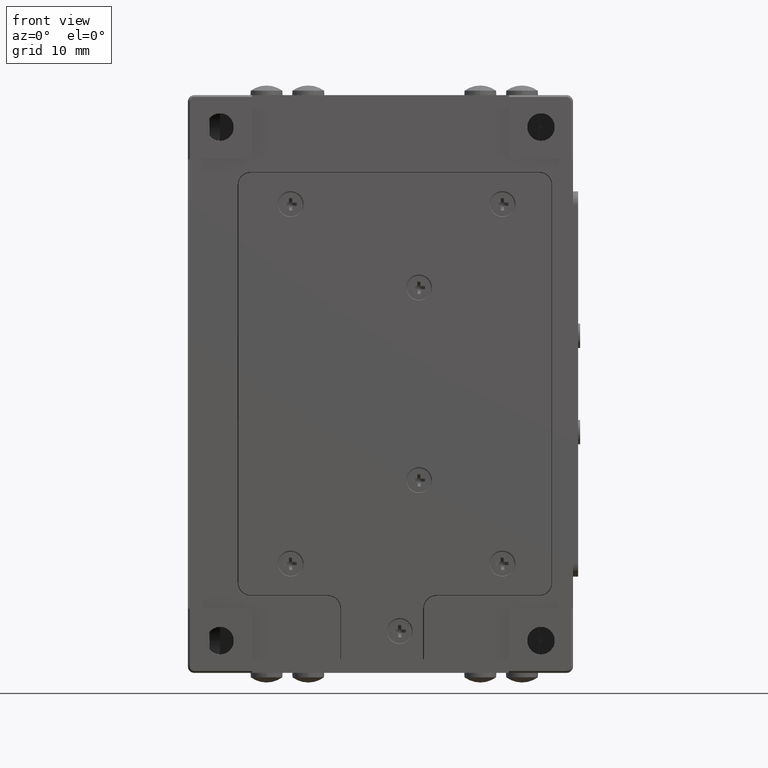
[diagram: clean part render]
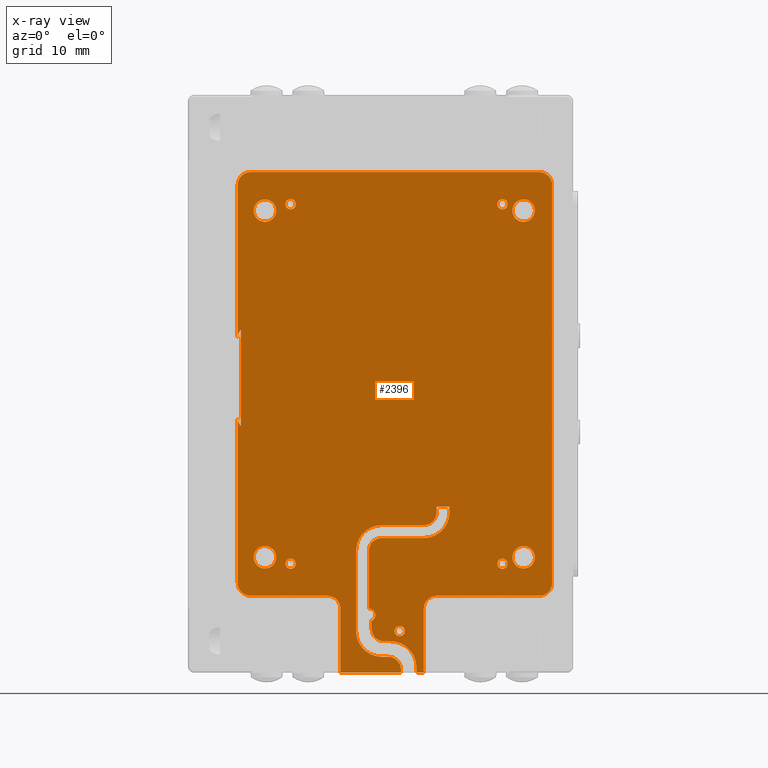
[diagram: x-ray — body ghosted, one internal face saturated and labeled with its STEP entity id]
A machine part, front view, then the same camera in x-ray: the body is ghosted and one INTERNAL B-rep face — a face not visible from any outside direction — is saturated and labeled: STEP entity #2396.
In plain terms, the highlighted planar face has unit normal (0, -1, 0).
Its self-contained STEP definition (entity closure, byte-faithful):
#40 = CARTESIAN_POINT ( 'NONE',  ( 30.59999999999999787, 3.250000000000000000, -85.09999999999999432 ) ) ;
#89 = FACE_BOUND ( 'NONE', #26104, .T. ) ;
#176 = VERTEX_POINT ( 'NONE', #14839 ) ;
#201 = ORIENTED_EDGE ( 'NONE', *, *, #27828, .F. ) ;
#214 = DIRECTION ( 'NONE',  ( 1.182766006347821876E-16, 0.000000000000000000, -1.000000000000000000 ) ) ;
#321 = DIRECTION ( 'NONE',  ( -2.312964634635740689E-15, 0.000000000000000000, -1.000000000000000000 ) ) ;
#330 = CARTESIAN_POINT ( 'NONE',  ( 23.75000000000000000, 3.250000000000000000, -90.00000000000000000 ) ) ;
#337 = VERTEX_POINT ( 'NONE', #40 ) ;
#500 = DIRECTION ( 'NONE',  ( 0.000000000000000000, -1.000000000000000000, 0.000000000000000000 ) ) ;
#508 = ORIENTED_EDGE ( 'NONE', *, *, #6163, .F. ) ;
#528 = CARTESIAN_POINT ( 'NONE',  ( 33.20000000000000284, 3.250000000000000000, -90.00000000000000000 ) ) ;
#571 = CARTESIAN_POINT ( 'NONE',  ( 26.20000000000000284, 3.250000000000000000, -87.50000000000000000 ) ) ;
#682 = EDGE_LOOP ( 'NONE', ( #201, #20835 ) ) ;
#776 = CARTESIAN_POINT ( 'NONE',  ( 30.20000000000000284, 3.250000000000000000, -71.00000000000000000 ) ) ;
#825 = EDGE_CURVE ( 'NONE', #11387, #21445, #11727, .T. ) ;
#911 = CIRCLE ( 'NONE', #11723, 2.000000000000001776 ) ;
#985 = ORIENTED_EDGE ( 'NONE', *, *, #4991, .T. ) ;
#1017 = VERTEX_POINT ( 'NONE', #18372 ) ;
#1246 = FACE_OUTER_BOUND ( 'NONE', #19848, .T. ) ;
#1423 = CARTESIAN_POINT ( 'NONE',  ( 30.20000000000000284, 3.250000000000000000, -71.00000000000000000 ) ) ;
#1487 = DIRECTION ( 'NONE',  ( 0.000000000000000000, -1.000000000000000000, 0.000000000000000000 ) ) ;
#1807 = CARTESIAN_POINT ( 'NONE',  ( 16.00000000000000000, 3.250000000000000000, -73.80000000000001137 ) ) ;
#1831 = CARTESIAN_POINT ( 'NONE',  ( 26.20000000000000284, 3.250000000000000000, -83.50000000000000000 ) ) ;
#1834 = DIRECTION ( 'NONE',  ( -1.000000000000000000, 0.000000000000000000, 0.000000000000000000 ) ) ;
#1861 = CARTESIAN_POINT ( 'NONE',  ( 28.60000000000000142, 3.250000000000000000, -85.09999999999999432 ) ) ;
#1875 = DIRECTION ( 'NONE',  ( 0.000000000000000000, 0.000000000000000000, -1.000000000000000000 ) ) ;
#1928 = EDGE_CURVE ( 'NONE', #26527, #22043, #14927, .T. ) ;
#1947 = AXIS2_PLACEMENT_3D ( 'NONE', #21725, #19592, #321 ) ;
#1975 = CARTESIAN_POINT ( 'NONE',  ( 30.20000000000000284, 3.250000000000000000, -83.50000000000000000 ) ) ;
#2014 = CARTESIAN_POINT ( 'NONE',  ( 56.75000000000000000, 3.250000000000000000, -12.00000000000000000 ) ) ;
#2039 = CARTESIAN_POINT ( 'NONE',  ( 12.00000000000000000, 3.250000000000000000, -72.00000000000000000 ) ) ;
#2042 = DIRECTION ( 'NONE',  ( 0.000000000000000000, 1.000000000000000000, 0.000000000000000000 ) ) ;
#2057 = DIRECTION ( 'NONE',  ( 0.000000000000000000, 0.000000000000000000, -1.000000000000000000 ) ) ;
#2064 = EDGE_CURVE ( 'NONE', #16435, #19177, #5652, .T. ) ;
#2192 = CARTESIAN_POINT ( 'NONE',  ( 8.248823012634890262, 3.250000000000000000, -36.56301985694889822 ) ) ;
#2244 = CARTESIAN_POINT ( 'NONE',  ( 52.29999999999999716, 3.250000000000000000, -19.75000000000000000 ) ) ;
#2279 = CARTESIAN_POINT ( 'NONE',  ( 35.60000000000000142, 3.250000000000000000, -90.00000000000000000 ) ) ;
#2362 = CIRCLE ( 'NONE', #5054, 2.000000000000001776 ) ;
#2376 = ORIENTED_EDGE ( 'NONE', *, *, #7323, .T. ) ;
#2396 = ADVANCED_FACE ( 'NONE', ( #1246, #27427, #23086, #6042, #12407, #20538, #5897, #12934, #18705, #89 ), #8685, .T. ) ;
#2507 = EDGE_CURVE ( 'NONE', #24989, #26527, #18838, .T. ) ;
#2606 = ORIENTED_EDGE ( 'NONE', *, *, #18193, .F. ) ;
#2625 = CARTESIAN_POINT ( 'NONE',  ( 28.60000000000000142, 3.250000000000000000, -83.09999999999999432 ) ) ;
#2678 = CARTESIAN_POINT ( 'NONE',  ( 7.750000000000000000, 3.250000000000000000, -14.00000000000000000 ) ) ;
#2717 = CARTESIAN_POINT ( 'NONE',  ( 28.60000000000000142, 3.250000000000000000, -81.91651513899120118 ) ) ;
#2725 = DIRECTION ( 'NONE',  ( 0.000000000000000000, 0.000000000000000000, -1.000000000000000000 ) ) ;
#2771 = ORIENTED_EDGE ( 'NONE', *, *, #20947, .T. ) ;
#2781 = DIRECTION ( 'NONE',  ( 0.000000000000000000, -1.000000000000000000, 0.000000000000000000 ) ) ;
#2808 = VERTEX_POINT ( 'NONE', #11628 ) ;
#2837 = CIRCLE ( 'NONE', #22642, 0.7999999999999951594 ) ;
#2879 = EDGE_CURVE ( 'NONE', #7206, #22760, #19055, .T. ) ;
#2890 = DIRECTION ( 'NONE',  ( 0.000000000000000000, 0.000000000000000000, -1.000000000000000000 ) ) ;
#2911 = CARTESIAN_POINT ( 'NONE',  ( 49.00000000000000000, 3.250000000000000000, -73.00000000000000000 ) ) ;
#3031 = DIRECTION ( 'NONE',  ( 0.000000000000000000, 0.000000000000000000, -1.000000000000000000 ) ) ;
#3079 = CIRCLE ( 'NONE', #13910, 0.7999999999999951594 ) ;
#3211 = CIRCLE ( 'NONE', #20754, 1.750000000000001554 ) ;
#3285 = VERTEX_POINT ( 'NONE', #27198 ) ;
#3307 = DIRECTION ( 'NONE',  ( 0.000000000000000000, -1.000000000000000000, 0.000000000000000000 ) ) ;
#3427 = DIRECTION ( 'NONE',  ( 0.000000000000000000, -1.000000000000000000, 0.000000000000000000 ) ) ;
#3467 = VERTEX_POINT ( 'NONE', #8765 ) ;
#3521 = DIRECTION ( 'NONE',  ( 1.000000000000000000, 0.000000000000000000, 0.000000000000000000 ) ) ;
#3670 = CARTESIAN_POINT ( 'NONE',  ( 30.59999999999999787, 3.250000000000000000, -83.09999999999999432 ) ) ;
#3750 = VERTEX_POINT ( 'NONE', #16741 ) ;
#3811 = CARTESIAN_POINT ( 'NONE',  ( 23.75000000000000000, 3.250000000000000000, -78.00000000000000000 ) ) ;
#3819 = DIRECTION ( 'NONE',  ( 0.000000000000000000, 0.000000000000000000, 1.000000000000000000 ) ) ;
#3878 = CARTESIAN_POINT ( 'NONE',  ( 31.19999999999999929, 3.250000000000000000, -89.50000000000000000 ) ) ;
#4021 = VERTEX_POINT ( 'NONE', #2625 ) ;
#4052 = CARTESIAN_POINT ( 'NONE',  ( 54.75000000000000000, 3.250000000000000000, -14.00000000000000000 ) ) ;
#4101 = CIRCLE ( 'NONE', #22980, 0.2999999999999947153 ) ;
#4116 = VECTOR ( 'NONE', #6270, 1000.000000000000000 ) ;
#4206 = EDGE_LOOP ( 'NONE', ( #15213, #25894 ) ) ;
#4210 = EDGE_CURVE ( 'NONE', #15491, #12028, #11200, .T. ) ;
#4211 = ORIENTED_EDGE ( 'NONE', *, *, #8057, .T. ) ;
#4322 = EDGE_CURVE ( 'NONE', #1017, #13098, #10428, .T. ) ;
#4366 = DIRECTION ( 'NONE',  ( 0.000000000000000000, 0.000000000000000000, -1.000000000000000000 ) ) ;
#4492 = DIRECTION ( 'NONE',  ( 0.000000000000000000, -1.000000000000000000, 0.000000000000000000 ) ) ;
#4502 = EDGE_CURVE ( 'NONE', #13005, #6676, #27806, .T. ) ;
#4510 = AXIS2_PLACEMENT_3D ( 'NONE', #21358, #19232, #2057 ) ;
#4536 = CARTESIAN_POINT ( 'NONE',  ( 52.29999999999999716, 3.250000000000000000, -73.75000000000000000 ) ) ;
#4556 = EDGE_CURVE ( 'NONE', #21292, #22760, #17166, .T. ) ;
#4580 = DIRECTION ( 'NONE',  ( -2.102695122396129669E-16, 0.000000000000000000, 1.000000000000000000 ) ) ;
#4778 = DIRECTION ( 'NONE',  ( 0.000000000000000000, 0.000000000000000000, -1.000000000000000000 ) ) ;
#4801 = VECTOR ( 'NONE', #9171, 1000.000000000000000 ) ;
#4847 = DIRECTION ( 'NONE',  ( 0.000000000000000000, -1.000000000000000000, 0.000000000000000000 ) ) ;
#4868 = CARTESIAN_POINT ( 'NONE',  ( 38.75000000000000000, 3.250000000000000000, -78.00000000000000000 ) ) ;
#4924 = VERTEX_POINT ( 'NONE', #1831 ) ;
#4991 = EDGE_CURVE ( 'NONE', #6468, #4924, #19365, .T. ) ;
#5014 = AXIS2_PLACEMENT_3D ( 'NONE', #10095, #2042, #10370 ) ;
#5054 = AXIS2_PLACEMENT_3D ( 'NONE', #3670, #5933, #21280 ) ;
#5068 = VECTOR ( 'NONE', #20670, 1000.000000000000000 ) ;
#5075 = AXIS2_PLACEMENT_3D ( 'NONE', #17749, #15376, #23964 ) ;
#5102 = CIRCLE ( 'NONE', #10066, 0.7999999999999951594 ) ;
#5140 = EDGE_CURVE ( 'NONE', #9000, #10043, #4101, .T. ) ;
#5218 = CARTESIAN_POINT ( 'NONE',  ( 36.75000000000000000, 3.250000000000000000, -65.00000000000000000 ) ) ;
#5313 = AXIS2_PLACEMENT_3D ( 'NONE', #5616, #27152, #7868 ) ;
#5352 = DIRECTION ( 'NONE',  ( -1.000000000000000000, 0.000000000000000000, 0.000000000000000000 ) ) ;
#5404 = ORIENTED_EDGE ( 'NONE', *, *, #19401, .F. ) ;
#5471 = ORIENTED_EDGE ( 'NONE', *, *, #5648, .F. ) ;
#5492 = ORIENTED_EDGE ( 'NONE', *, *, #14829, .T. ) ;
#5616 = CARTESIAN_POINT ( 'NONE',  ( 0.000000000000000000, 3.250000000000000000, 0.000000000000000000 ) ) ;
#5648 = EDGE_CURVE ( 'NONE', #21146, #10043, #17414, .T. ) ;
#5652 = LINE ( 'NONE', #14260, #11328 ) ;
#5810 = DIRECTION ( 'NONE',  ( 0.000000000000000000, -1.000000000000000000, 0.000000000000000000 ) ) ;
#5811 = ORIENTED_EDGE ( 'NONE', *, *, #25955, .T. ) ;
#5813 = CARTESIAN_POINT ( 'NONE',  ( 33.00000000000000000, 3.250000000000000000, -82.69999999999998863 ) ) ;
#5883 = CARTESIAN_POINT ( 'NONE',  ( 23.75000000000000000, 3.250000000000000000, -80.00000000000000000 ) ) ;
#5897 = FACE_BOUND ( 'NONE', #17211, .T. ) ;
#5933 = DIRECTION ( 'NONE',  ( 0.000000000000000000, -1.000000000000000000, 0.000000000000000000 ) ) ;
#5974 = EDGE_CURVE ( 'NONE', #16652, #11817, #9097, .T. ) ;
#6042 = FACE_BOUND ( 'NONE', #22532, .T. ) ;
#6160 = VECTOR ( 'NONE', #10896, 1000.000000000000000 ) ;
#6163 = EDGE_CURVE ( 'NONE', #7795, #13707, #3211, .T. ) ;
#6168 = EDGE_CURVE ( 'NONE', #13098, #11860, #24426, .T. ) ;
#6270 = DIRECTION ( 'NONE',  ( 0.000000000000000000, 0.000000000000000000, -1.000000000000000000 ) ) ;
#6293 = EDGE_CURVE ( 'NONE', #13892, #176, #8077, .T. ) ;
#6357 = EDGE_CURVE ( 'NONE', #11860, #10475, #7745, .T. ) ;
#6386 = DIRECTION ( 'NONE',  ( -1.000000000000000000, 0.000000000000000000, -7.080503983578799386E-17 ) ) ;
#6387 = DIRECTION ( 'NONE',  ( 1.000000000000000000, 0.000000000000000000, 0.000000000000000000 ) ) ;
#6456 = CARTESIAN_POINT ( 'NONE',  ( 40.75000000000000000, 3.250000000000000000, -64.12938333263569746 ) ) ;
#6464 = CIRCLE ( 'NONE', #19031, 0.7999999999999812816 ) ;
#6468 = VERTEX_POINT ( 'NONE', #17621 ) ;
#6496 = LINE ( 'NONE', #21001, #22331 ) ;
#6644 = CIRCLE ( 'NONE', #13853, 0.7999999999999882760 ) ;
#6664 = ORIENTED_EDGE ( 'NONE', *, *, #6168, .T. ) ;
#6676 = VERTEX_POINT ( 'NONE', #24662 ) ;
#6691 = VERTEX_POINT ( 'NONE', #18314 ) ;
#6702 = EDGE_CURVE ( 'NONE', #4021, #337, #2362, .T. ) ;
#6734 = EDGE_CURVE ( 'NONE', #21292, #19177, #18743, .T. ) ;
#6790 = CARTESIAN_POINT ( 'NONE',  ( 28.19999999999999929, 3.250000000000000000, -80.00000000000000000 ) ) ;
#6824 = CARTESIAN_POINT ( 'NONE',  ( 54.75000000000000000, 3.250000000000000000, -78.00000000000000000 ) ) ;
#6828 = VERTEX_POINT ( 'NONE', #16773 ) ;
#6911 = CIRCLE ( 'NONE', #10548, 0.9999999999999870104 ) ;
#6944 = EDGE_CURVE ( 'NONE', #10142, #2808, #25746, .T. ) ;
#7010 = DIRECTION ( 'NONE',  ( 0.000000000000000000, 0.000000000000000000, -1.000000000000000000 ) ) ;
#7073 = DIRECTION ( 'NONE',  ( 0.000000000000000000, 0.000000000000000000, -1.000000000000000000 ) ) ;
#7097 = CARTESIAN_POINT ( 'NONE',  ( 16.00000000000000000, 3.250000000000000000, -16.19999999999999929 ) ) ;
#7198 = AXIS2_PLACEMENT_3D ( 'NONE', #15591, #23774, #9123 ) ;
#7206 = VERTEX_POINT ( 'NONE', #12377 ) ;
#7323 = EDGE_CURVE ( 'NONE', #10475, #8807, #10944, .T. ) ;
#7330 = CARTESIAN_POINT ( 'NONE',  ( 31.19999999999999929, 3.250000000000000000, -87.50000000000000000 ) ) ;
#7410 = CARTESIAN_POINT ( 'NONE',  ( 28.19999999999999929, 3.250000000000000000, -71.00000000000000000 ) ) ;
#7482 = DIRECTION ( 'NONE',  ( 0.000000000000000000, 1.000000000000000000, 0.000000000000000000 ) ) ;
#7579 = DIRECTION ( 'NONE',  ( 0.000000000000000000, 0.000000000000000000, -1.000000000000000000 ) ) ;
#7660 = CARTESIAN_POINT ( 'NONE',  ( 28.19999999999999929, 3.250000000000000000, -81.00000000000000000 ) ) ;
#7665 = ORIENTED_EDGE ( 'NONE', *, *, #16691, .T. ) ;
#7745 = CIRCLE ( 'NONE', #15399, 2.000000000000001776 ) ;
#7795 = VERTEX_POINT ( 'NONE', #13028 ) ;
#7868 = DIRECTION ( 'NONE',  ( 0.000000000000000000, 0.000000000000000000, -1.000000000000000000 ) ) ;
#7887 = CARTESIAN_POINT ( 'NONE',  ( 9.750000000000000000, 3.250000000000000000, -14.00000000000000000 ) ) ;
#7892 = AXIS2_PLACEMENT_3D ( 'NONE', #7887, #20417, #9741 ) ;
#7907 = DIRECTION ( 'NONE',  ( 0.000000000000000000, 0.000000000000000000, -1.000000000000000000 ) ) ;
#7997 = EDGE_LOOP ( 'NONE', ( #14520, #24666 ) ) ;
#8057 = EDGE_CURVE ( 'NONE', #6828, #27137, #25366, .T. ) ;
#8077 = LINE ( 'NONE', #2014, #10005 ) ;
#8091 = AXIS2_PLACEMENT_3D ( 'NONE', #1423, #27611, #7907 ) ;
#8250 = CARTESIAN_POINT ( 'NONE',  ( 23.75000000000000000, 3.250000000000000000, -90.00000000000000000 ) ) ;
#8351 = ORIENTED_EDGE ( 'NONE', *, *, #5974, .F. ) ;
#8420 = CIRCLE ( 'NONE', #11578, 0.7999999999999951594 ) ;
#8455 = ORIENTED_EDGE ( 'NONE', *, *, #12386, .F. ) ;
#8510 = ORIENTED_EDGE ( 'NONE', *, *, #9293, .T. ) ;
#8568 = CARTESIAN_POINT ( 'NONE',  ( 49.00000000000000000, 3.250000000000000000, -17.80000000000000071 ) ) ;
#8607 = LINE ( 'NONE', #3811, #15963 ) ;
#8685 = PLANE ( 'NONE',  #5313 ) ;
#8698 = EDGE_CURVE ( 'NONE', #20540, #13005, #12380, .T. ) ;
#8700 = CIRCLE ( 'NONE', #1947, 1.500000000000001332 ) ;
#8765 = CARTESIAN_POINT ( 'NONE',  ( 49.00000000000000000, 3.250000000000000000, -16.19999999999999929 ) ) ;
#8806 = AXIS2_PLACEMENT_3D ( 'NONE', #16090, #5810, #24959 ) ;
#8807 = VERTEX_POINT ( 'NONE', #23897 ) ;
#9000 = VERTEX_POINT ( 'NONE', #19338 ) ;
#9097 = CIRCLE ( 'NONE', #19855, 0.7999999999999882760 ) ;
#9123 = DIRECTION ( 'NONE',  ( 0.000000000000000000, 0.000000000000000000, -1.000000000000000000 ) ) ;
#9171 = DIRECTION ( 'NONE',  ( 0.000000000000000000, 0.000000000000000000, -1.000000000000000000 ) ) ;
#9293 = EDGE_CURVE ( 'NONE', #24467, #6691, #17301, .T. ) ;
#9297 = CARTESIAN_POINT ( 'NONE',  ( 16.00000000000000000, 3.250000000000000000, -73.00000000000000000 ) ) ;
#9377 = ORIENTED_EDGE ( 'NONE', *, *, #2507, .T. ) ;
#9379 = DIRECTION ( 'NONE',  ( 0.000000000000000000, -1.000000000000000000, 0.000000000000000000 ) ) ;
#9434 = LINE ( 'NONE', #26593, #5068 ) ;
#9444 = EDGE_CURVE ( 'NONE', #4021, #11855, #16651, .T. ) ;
#9489 = VERTEX_POINT ( 'NONE', #23280 ) ;
#9490 = AXIS2_PLACEMENT_3D ( 'NONE', #1975, #15089, #4366 ) ;
#9531 = CARTESIAN_POINT ( 'NONE',  ( 38.75000000000000000, 3.250000000000000000, -80.00000000000000000 ) ) ;
#9567 = DIRECTION ( 'NONE',  ( 0.000000000000000000, 0.000000000000000000, -1.000000000000000000 ) ) ;
#9741 = DIRECTION ( 'NONE',  ( 0.000000000000000000, 0.000000000000000000, -1.000000000000000000 ) ) ;
#9761 = VECTOR ( 'NONE', #15386, 1000.000000000000000 ) ;
#9964 = VECTOR ( 'NONE', #16419, 1000.000000000000000 ) ;
#10005 = VECTOR ( 'NONE', #6386, 1000.000000000000000 ) ;
#10042 = DIRECTION ( 'NONE',  ( 0.000000000000000000, 0.000000000000000000, -1.000000000000000000 ) ) ;
#10043 = VERTEX_POINT ( 'NONE', #18089 ) ;
#10066 = AXIS2_PLACEMENT_3D ( 'NONE', #15753, #17723, #26309 ) ;
#10095 = CARTESIAN_POINT ( 'NONE',  ( 36.75000000000000000, 3.250000000000000000, -65.00000000000000000 ) ) ;
#10142 = VERTEX_POINT ( 'NONE', #15856 ) ;
#10301 = EDGE_CURVE ( 'NONE', #21146, #13676, #17363, .T. ) ;
#10326 = EDGE_CURVE ( 'NONE', #17880, #13941, #18263, .T. ) ;
#10368 = CARTESIAN_POINT ( 'NONE',  ( 38.75000000000000000, 3.250000000000000000, -67.00000000000000000 ) ) ;
#10370 = DIRECTION ( 'NONE',  ( 0.000000000000000000, 0.000000000000000000, -1.000000000000000000 ) ) ;
#10380 = CIRCLE ( 'NONE', #15318, 1.750000000000001554 ) ;
#10387 = DIRECTION ( 'NONE',  ( 0.000000000000000000, 0.000000000000000000, -1.000000000000000000 ) ) ;
#10428 = CIRCLE ( 'NONE', #10875, 2.000000000000001776 ) ;
#10456 = DIRECTION ( 'NONE',  ( 0.000000000000000000, 1.000000000000000000, 0.000000000000000000 ) ) ;
#10475 = VERTEX_POINT ( 'NONE', #17915 ) ;
#10539 = CARTESIAN_POINT ( 'NONE',  ( 52.29999999999999716, 3.250000000000000000, -18.00000000000000000 ) ) ;
#10548 = AXIS2_PLACEMENT_3D ( 'NONE', #7660, #9379, #20335 ) ;
#10552 = DIRECTION ( 'NONE',  ( 0.000000000000000000, -1.000000000000000000, 0.000000000000000000 ) ) ;
#10636 = CARTESIAN_POINT ( 'NONE',  ( 28.19999999999999929, 3.250000000000000000, -69.00000000000000000 ) ) ;
#10663 = ORIENTED_EDGE ( 'NONE', *, *, #10326, .F. ) ;
#10700 = CARTESIAN_POINT ( 'NONE',  ( 36.75000000000000000, 3.250000000000000000, -90.00000000000000000 ) ) ;
#10713 = VERTEX_POINT ( 'NONE', #5813 ) ;
#10736 = ORIENTED_EDGE ( 'NONE', *, *, #12216, .F. ) ;
#10739 = VERTEX_POINT ( 'NONE', #20733 ) ;
#10869 = ORIENTED_EDGE ( 'NONE', *, *, #6293, .T. ) ;
#10875 = AXIS2_PLACEMENT_3D ( 'NONE', #9531, #26693, #2890 ) ;
#10896 = DIRECTION ( 'NONE',  ( 0.000000000000000000, 0.000000000000000000, 1.000000000000000000 ) ) ;
#10935 = CIRCLE ( 'NONE', #24406, 2.000000000000001776 ) ;
#10944 = LINE ( 'NONE', #26394, #11411 ) ;
#11023 = AXIS2_PLACEMENT_3D ( 'NONE', #15048, #23766, #17132 ) ;
#11200 = LINE ( 'NONE', #23736, #21187 ) ;
#11255 = CARTESIAN_POINT ( 'NONE',  ( 35.60000000000000142, 3.250000000000000000, -89.70000000000000284 ) ) ;
#11276 = CARTESIAN_POINT ( 'NONE',  ( 32.89999999999999858, 3.250000000000000000, -89.70000000000000284 ) ) ;
#11280 = CARTESIAN_POINT ( 'NONE',  ( 12.00000000000000000, 3.250000000000000000, -72.00000000000000000 ) ) ;
#11315 = LINE ( 'NONE', #330, #12392 ) ;
#11328 = VECTOR ( 'NONE', #3521, 1000.000000000000000 ) ;
#11387 = VERTEX_POINT ( 'NONE', #2244 ) ;
#11411 = VECTOR ( 'NONE', #4580, 1000.000000000000000 ) ;
#11513 = VECTOR ( 'NONE', #21032, 1000.000000000000000 ) ;
#11578 = AXIS2_PLACEMENT_3D ( 'NONE', #2911, #13236, #7010 ) ;
#11628 = CARTESIAN_POINT ( 'NONE',  ( 9.750000000000000000, 3.250000000000000000, -78.00000000000000000 ) ) ;
#11636 = EDGE_CURVE ( 'NONE', #3467, #22011, #26802, .T. ) ;
#11723 = AXIS2_PLACEMENT_3D ( 'NONE', #776, #500, #2725 ) ;
#11727 = CIRCLE ( 'NONE', #7198, 1.750000000000001554 ) ;
#11764 = CARTESIAN_POINT ( 'NONE',  ( 12.00000000000000000, 3.250000000000000000, -18.00000000000000000 ) ) ;
#11817 = VERTEX_POINT ( 'NONE', #7097 ) ;
#11818 = ORIENTED_EDGE ( 'NONE', *, *, #6357, .T. ) ;
#11855 = VERTEX_POINT ( 'NONE', #2717 ) ;
#11860 = VERTEX_POINT ( 'NONE', #6824 ) ;
#11863 = LINE ( 'NONE', #20560, #14604 ) ;
#12028 = VERTEX_POINT ( 'NONE', #25245 ) ;
#12098 = VERTEX_POINT ( 'NONE', #4536 ) ;
#12216 = EDGE_CURVE ( 'NONE', #24467, #27137, #12750, .T. ) ;
#12217 = LINE ( 'NONE', #16836, #13623 ) ;
#12260 = AXIS2_PLACEMENT_3D ( 'NONE', #13088, #17551, #15195 ) ;
#12318 = ORIENTED_EDGE ( 'NONE', *, *, #6944, .T. ) ;
#12377 = CARTESIAN_POINT ( 'NONE',  ( 30.20000000000000284, 3.250000000000000000, -69.00000000000000000 ) ) ;
#12380 = CIRCLE ( 'NONE', #11023, 2.000000000000001776 ) ;
#12386 = EDGE_CURVE ( 'NONE', #10739, #19336, #26066, .T. ) ;
#12392 = VECTOR ( 'NONE', #6387, 1000.000000000000000 ) ;
#12407 = FACE_BOUND ( 'NONE', #682, .T. ) ;
#12483 = CARTESIAN_POINT ( 'NONE',  ( 40.75000000000000000, 3.250000000000000000, -65.00000000000000000 ) ) ;
#12652 = DIRECTION ( 'NONE',  ( 0.000000000000000000, 0.000000000000000000, -1.000000000000000000 ) ) ;
#12750 = LINE ( 'NONE', #2279, #6160 ) ;
#12844 = VECTOR ( 'NONE', #1834, 1000.000000000000000 ) ;
#12864 = VERTEX_POINT ( 'NONE', #18267 ) ;
#12920 = DIRECTION ( 'NONE',  ( 0.000000000000000000, -1.000000000000000000, 0.000000000000000000 ) ) ;
#12934 = FACE_BOUND ( 'NONE', #4206, .T. ) ;
#12993 = VECTOR ( 'NONE', #23228, 1000.000000000000000 ) ;
#13005 = VERTEX_POINT ( 'NONE', #5883 ) ;
#13006 = EDGE_CURVE ( 'NONE', #11817, #16652, #6644, .T. ) ;
#13028 = CARTESIAN_POINT ( 'NONE',  ( 12.00000000000000000, 3.250000000000000000, -19.75000000000000000 ) ) ;
#13088 = CARTESIAN_POINT ( 'NONE',  ( 16.00000000000000000, 3.250000000000000000, -73.00000000000000000 ) ) ;
#13098 = VERTEX_POINT ( 'NONE', #4868 ) ;
#13117 = EDGE_LOOP ( 'NONE', ( #5404, #23127 ) ) ;
#13131 = VERTEX_POINT ( 'NONE', #17135 ) ;
#13236 = DIRECTION ( 'NONE',  ( 0.000000000000000000, -1.000000000000000000, 0.000000000000000000 ) ) ;
#13265 = CARTESIAN_POINT ( 'NONE',  ( 36.75000000000000000, 3.250000000000000000, -69.00000000000000000 ) ) ;
#13304 = ORIENTED_EDGE ( 'NONE', *, *, #15483, .T. ) ;
#13563 = CARTESIAN_POINT ( 'NONE',  ( 9.250000000000000000, 3.250000000000000000, -50.39999999934259733 ) ) ;
#13579 = ORIENTED_EDGE ( 'NONE', *, *, #2064, .T. ) ;
#13623 = VECTOR ( 'NONE', #18937, 1000.000000000000000 ) ;
#13676 = VERTEX_POINT ( 'NONE', #7330 ) ;
#13680 = EDGE_CURVE ( 'NONE', #13707, #7795, #20348, .T. ) ;
#13707 = VERTEX_POINT ( 'NONE', #26751 ) ;
#13712 = EDGE_CURVE ( 'NONE', #13131, #22525, #10935, .T. ) ;
#13827 = DIRECTION ( 'NONE',  ( 0.000000000000000000, 0.000000000000000000, -1.000000000000000000 ) ) ;
#13853 = AXIS2_PLACEMENT_3D ( 'NONE', #16441, #10552, #25160 ) ;
#13883 = CIRCLE ( 'NONE', #17904, 2.000000000000000000 ) ;
#13892 = VERTEX_POINT ( 'NONE', #27451 ) ;
#13910 = AXIS2_PLACEMENT_3D ( 'NONE', #16418, #3307, #3031 ) ;
#13941 = VERTEX_POINT ( 'NONE', #25198 ) ;
#14042 = CARTESIAN_POINT ( 'NONE',  ( 8.248823012634890262, 3.250000000000000000, -51.51698014239369883 ) ) ;
#14052 = EDGE_CURVE ( 'NONE', #17488, #24393, #6464, .T. ) ;
#14123 = EDGE_CURVE ( 'NONE', #21009, #9489, #5102, .T. ) ;
#14174 = DIRECTION ( 'NONE',  ( 0.000000000000000000, 0.000000000000000000, -1.000000000000000000 ) ) ;
#14182 = AXIS2_PLACEMENT_3D ( 'NONE', #18036, #17896, #7073 ) ;
#14241 = EDGE_CURVE ( 'NONE', #10713, #3285, #2837, .T. ) ;
#14260 = CARTESIAN_POINT ( 'NONE',  ( 54.27586717339519851, 3.250000000000000000, -64.12938333263569746 ) ) ;
#14431 = CARTESIAN_POINT ( 'NONE',  ( 16.00000000000000000, 3.250000000000000000, -17.80000000000000071 ) ) ;
#14520 = ORIENTED_EDGE ( 'NONE', *, *, #20902, .F. ) ;
#14535 = DIRECTION ( 'NONE',  ( 1.000000000000000000, 0.000000000000000000, 0.000000000000000000 ) ) ;
#14549 = CARTESIAN_POINT ( 'NONE',  ( 31.60000000000000142, 3.250000000000000000, -89.09999999999999432 ) ) ;
#14604 = VECTOR ( 'NONE', #5352, 1000.000000000000000 ) ;
#14679 = CARTESIAN_POINT ( 'NONE',  ( 52.29999999999999716, 3.250000000000000000, -16.25000000000000000 ) ) ;
#14757 = CARTESIAN_POINT ( 'NONE',  ( 52.29999999999999716, 3.250000000000000000, -72.00000000000000000 ) ) ;
#14807 = ORIENTED_EDGE ( 'NONE', *, *, #6734, .F. ) ;
#14822 = CARTESIAN_POINT ( 'NONE',  ( 35.60000000000000142, 3.250000000000000000, -89.09999999999999432 ) ) ;
#14829 = EDGE_CURVE ( 'NONE', #22043, #10142, #12217, .T. ) ;
#14839 = CARTESIAN_POINT ( 'NONE',  ( 9.750000000000000000, 3.250000000000000000, -12.00000000000000000 ) ) ;
#14927 = CIRCLE ( 'NONE', #25696, 1.500000000000001332 ) ;
#15048 = CARTESIAN_POINT ( 'NONE',  ( 21.75000000000000000, 3.250000000000000000, -80.00000000000000000 ) ) ;
#15089 = DIRECTION ( 'NONE',  ( 0.000000000000000000, 1.000000000000000000, 0.000000000000000000 ) ) ;
#15195 = DIRECTION ( 'NONE',  ( 0.000000000000000000, 0.000000000000000000, -1.000000000000000000 ) ) ;
#15213 = ORIENTED_EDGE ( 'NONE', *, *, #20933, .F. ) ;
#15318 = AXIS2_PLACEMENT_3D ( 'NONE', #14757, #21501, #12652 ) ;
#15376 = DIRECTION ( 'NONE',  ( 0.000000000000000000, -1.000000000000000000, 0.000000000000000000 ) ) ;
#15386 = DIRECTION ( 'NONE',  ( 0.000000000000000000, 0.000000000000000000, 1.000000000000000000 ) ) ;
#15399 = AXIS2_PLACEMENT_3D ( 'NONE', #21171, #23293, #1875 ) ;
#15483 = EDGE_CURVE ( 'NONE', #12028, #24989, #8700, .T. ) ;
#15491 = VERTEX_POINT ( 'NONE', #2678 ) ;
#15500 = DIRECTION ( 'NONE',  ( 0.000000000000000000, -1.000000000000000000, 0.000000000000000000 ) ) ;
#15591 = CARTESIAN_POINT ( 'NONE',  ( 52.29999999999999716, 3.250000000000000000, -18.00000000000000000 ) ) ;
#15753 = CARTESIAN_POINT ( 'NONE',  ( 49.00000000000000000, 3.250000000000000000, -73.00000000000000000 ) ) ;
#15770 = CIRCLE ( 'NONE', #4510, 0.7999999999999882760 ) ;
#15773 = EDGE_LOOP ( 'NONE', ( #15782, #23947 ) ) ;
#15782 = ORIENTED_EDGE ( 'NONE', *, *, #825, .F. ) ;
#15824 = CIRCLE ( 'NONE', #12260, 0.7999999999999812816 ) ;
#15856 = CARTESIAN_POINT ( 'NONE',  ( 7.750000000000000000, 3.250000000000000000, -76.00000000000000000 ) ) ;
#15963 = VECTOR ( 'NONE', #14535, 1000.000000000000000 ) ;
#16090 = CARTESIAN_POINT ( 'NONE',  ( 35.89999999999999858, 3.250000000000000000, -89.70000000000000284 ) ) ;
#16109 = ORIENTED_EDGE ( 'NONE', *, *, #6702, .T. ) ;
#16362 = VERTEX_POINT ( 'NONE', #21907 ) ;
#16418 = CARTESIAN_POINT ( 'NONE',  ( 33.00000000000000000, 3.250000000000000000, -83.50000000000000000 ) ) ;
#16419 = DIRECTION ( 'NONE',  ( 0.000000000000000000, 0.000000000000000000, -1.000000000000000000 ) ) ;
#16435 = VERTEX_POINT ( 'NONE', #20603 ) ;
#16441 = CARTESIAN_POINT ( 'NONE',  ( 16.00000000000000000, 3.250000000000000000, -17.00000000000000000 ) ) ;
#16506 = ORIENTED_EDGE ( 'NONE', *, *, #22785, .F. ) ;
#16552 = LINE ( 'NONE', #10368, #27539 ) ;
#16651 = LINE ( 'NONE', #1861, #25432 ) ;
#16652 = VERTEX_POINT ( 'NONE', #14431 ) ;
#16691 = EDGE_CURVE ( 'NONE', #6676, #9000, #11315, .T. ) ;
#16741 = CARTESIAN_POINT ( 'NONE',  ( 52.29999999999999716, 3.250000000000000000, -70.25000000000000000 ) ) ;
#16773 = CARTESIAN_POINT ( 'NONE',  ( 31.60000000000000142, 3.250000000000000000, -85.09999999999999432 ) ) ;
#16836 = CARTESIAN_POINT ( 'NONE',  ( 7.750000000000000000, 3.250000000000000000, -12.00000000000000000 ) ) ;
#16867 = EDGE_CURVE ( 'NONE', #3750, #12098, #21820, .T. ) ;
#17028 = ORIENTED_EDGE ( 'NONE', *, *, #13712, .T. ) ;
#17046 = DIRECTION ( 'NONE',  ( 0.000000000000000000, 0.000000000000000000, -1.000000000000000000 ) ) ;
#17103 = DIRECTION ( 'NONE',  ( 0.000000000000000000, 0.000000000000000000, -1.000000000000000000 ) ) ;
#17132 = DIRECTION ( 'NONE',  ( 0.000000000000000000, 0.000000000000000000, -1.000000000000000000 ) ) ;
#17135 = CARTESIAN_POINT ( 'NONE',  ( 36.75000000000000000, 3.250000000000000000, -67.00000000000000000 ) ) ;
#17154 = EDGE_CURVE ( 'NONE', #176, #15491, #22300, .T. ) ;
#17166 = CIRCLE ( 'NONE', #5014, 4.000000000000003553 ) ;
#17211 = EDGE_LOOP ( 'NONE', ( #8351, #19290 ) ) ;
#17230 = ORIENTED_EDGE ( 'NONE', *, *, #13680, .F. ) ;
#17301 = CIRCLE ( 'NONE', #8806, 0.2999999999999947153 ) ;
#17325 = ORIENTED_EDGE ( 'NONE', *, *, #25841, .F. ) ;
#17363 = CIRCLE ( 'NONE', #26805, 2.000000000000001776 ) ;
#17414 = LINE ( 'NONE', #528, #9964 ) ;
#17488 = VERTEX_POINT ( 'NONE', #21825 ) ;
#17513 = DIRECTION ( 'NONE',  ( 0.000000000000000000, 0.000000000000000000, 1.000000000000000000 ) ) ;
#17551 = DIRECTION ( 'NONE',  ( 0.000000000000000000, -1.000000000000000000, 0.000000000000000000 ) ) ;
#17621 = CARTESIAN_POINT ( 'NONE',  ( 30.20000000000000284, 3.250000000000000000, -87.50000000000000000 ) ) ;
#17723 = DIRECTION ( 'NONE',  ( 0.000000000000000000, -1.000000000000000000, 0.000000000000000000 ) ) ;
#17749 = CARTESIAN_POINT ( 'NONE',  ( 12.00000000000000000, 3.250000000000000000, -18.00000000000000000 ) ) ;
#17866 = ORIENTED_EDGE ( 'NONE', *, *, #2879, .F. ) ;
#17880 = VERTEX_POINT ( 'NONE', #19657 ) ;
#17896 = DIRECTION ( 'NONE',  ( 0.000000000000000000, -1.000000000000000000, 0.000000000000000000 ) ) ;
#17904 = AXIS2_PLACEMENT_3D ( 'NONE', #4052, #27569, #20955 ) ;
#17915 = CARTESIAN_POINT ( 'NONE',  ( 56.75000000000000000, 3.250000000000000000, -76.00000000000000000 ) ) ;
#18036 = CARTESIAN_POINT ( 'NONE',  ( 52.29999999999999716, 3.250000000000000000, -72.00000000000000000 ) ) ;
#18089 = CARTESIAN_POINT ( 'NONE',  ( 33.20000000000000284, 3.250000000000000000, -89.70000000000000284 ) ) ;
#18193 = EDGE_CURVE ( 'NONE', #16435, #22525, #16552, .T. ) ;
#18263 = CIRCLE ( 'NONE', #19611, 1.750000000000001554 ) ;
#18267 = CARTESIAN_POINT ( 'NONE',  ( 30.20000000000000284, 3.250000000000000000, -67.00000000000000000 ) ) ;
#18277 = CARTESIAN_POINT ( 'NONE',  ( 49.00000000000000000, 3.250000000000000000, -17.00000000000000000 ) ) ;
#18314 = CARTESIAN_POINT ( 'NONE',  ( 35.89999999999999858, 3.250000000000000000, -90.00000000000000000 ) ) ;
#18355 = ORIENTED_EDGE ( 'NONE', *, *, #8698, .T. ) ;
#18372 = CARTESIAN_POINT ( 'NONE',  ( 36.75000000000000000, 3.250000000000000000, -80.00000000000000000 ) ) ;
#18553 = DIRECTION ( 'NONE',  ( 0.000000000000000000, -1.000000000000000000, 0.000000000000000000 ) ) ;
#18705 = FACE_BOUND ( 'NONE', #21775, .T. ) ;
#18743 = LINE ( 'NONE', #20998, #19439 ) ;
#18759 = DIRECTION ( 'NONE',  ( 0.000000000000000000, 0.000000000000000000, 1.000000000000000000 ) ) ;
#18838 = LINE ( 'NONE', #22803, #12993 ) ;
#18857 = ORIENTED_EDGE ( 'NONE', *, *, #14052, .F. ) ;
#18937 = DIRECTION ( 'NONE',  ( 1.182766006347821876E-16, 0.000000000000000000, -1.000000000000000000 ) ) ;
#19031 = AXIS2_PLACEMENT_3D ( 'NONE', #9297, #4492, #22096 ) ;
#19052 = EDGE_CURVE ( 'NONE', #8807, #13892, #13883, .T. ) ;
#19055 = LINE ( 'NONE', #10636, #11513 ) ;
#19100 = DIRECTION ( 'NONE',  ( 0.000000000000000000, -1.000000000000000000, 0.000000000000000000 ) ) ;
#19132 = EDGE_CURVE ( 'NONE', #21945, #1017, #21386, .T. ) ;
#19155 = CARTESIAN_POINT ( 'NONE',  ( 35.60000000000000142, 3.250000000000000000, -85.09999999999999432 ) ) ;
#19171 = AXIS2_PLACEMENT_3D ( 'NONE', #18277, #26868, #7579 ) ;
#19177 = VERTEX_POINT ( 'NONE', #6456 ) ;
#19232 = DIRECTION ( 'NONE',  ( 0.000000000000000000, -1.000000000000000000, 0.000000000000000000 ) ) ;
#19290 = ORIENTED_EDGE ( 'NONE', *, *, #13006, .F. ) ;
#19336 = VERTEX_POINT ( 'NONE', #7410 ) ;
#19338 = CARTESIAN_POINT ( 'NONE',  ( 32.89999999999999858, 3.250000000000000000, -90.00000000000000000 ) ) ;
#19365 = CIRCLE ( 'NONE', #9490, 4.000000000000003553 ) ;
#19401 = EDGE_CURVE ( 'NONE', #3285, #10713, #3079, .T. ) ;
#19439 = VECTOR ( 'NONE', #3819, 1000.000000000000000 ) ;
#19491 = CARTESIAN_POINT ( 'NONE',  ( 16.00000000000000000, 3.250000000000000000, -17.00000000000000000 ) ) ;
#19592 = DIRECTION ( 'NONE',  ( 0.000000000000000000, 1.000000000000000000, 0.000000000000000000 ) ) ;
#19611 = AXIS2_PLACEMENT_3D ( 'NONE', #2039, #12920, #17103 ) ;
#19657 = CARTESIAN_POINT ( 'NONE',  ( 12.00000000000000000, 3.250000000000000000, -70.25000000000000000 ) ) ;
#19669 = CARTESIAN_POINT ( 'NONE',  ( 9.750000000000000000, 3.250000000000000000, -76.00000000000000000 ) ) ;
#19797 = CARTESIAN_POINT ( 'NONE',  ( 36.75000000000000000, 3.250000000000000000, -90.00000000000000000 ) ) ;
#19805 = CARTESIAN_POINT ( 'NONE',  ( 21.75000000000000000, 3.250000000000000000, -78.00000000000000000 ) ) ;
#19840 = LINE ( 'NONE', #571, #4801 ) ;
#19848 = EDGE_LOOP ( 'NONE', ( #2606, #13579, #14807, #20172, #17866, #2771, #8455, #27792, #26374, #16109, #17325, #4211, #10736, #8510, #22146, #19925, #23926, #6664, #11818, #2376, #27129, #10869, #20297, #23518, #13304, #9377, #27252, #5492, #12318, #5811, #18355, #25653, #7665, #27626, #5471, #25795, #23794, #985, #20381, #25792, #21953, #17028 ) ) ;
#19855 = AXIS2_PLACEMENT_3D ( 'NONE', #19491, #4847, #25975 ) ;
#19925 = ORIENTED_EDGE ( 'NONE', *, *, #19132, .T. ) ;
#20048 = DIRECTION ( 'NONE',  ( 1.000000000000000000, 0.000000000000000000, 0.000000000000000000 ) ) ;
#20172 = ORIENTED_EDGE ( 'NONE', *, *, #4556, .T. ) ;
#20297 = ORIENTED_EDGE ( 'NONE', *, *, #17154, .T. ) ;
#20335 = DIRECTION ( 'NONE',  ( 0.000000000000000000, 0.000000000000000000, -1.000000000000000000 ) ) ;
#20340 = EDGE_CURVE ( 'NONE', #16362, #12864, #26975, .T. ) ;
#20348 = CIRCLE ( 'NONE', #5075, 1.750000000000001554 ) ;
#20381 = ORIENTED_EDGE ( 'NONE', *, *, #27437, .F. ) ;
#20417 = DIRECTION ( 'NONE',  ( 0.000000000000000000, -1.000000000000000000, 0.000000000000000000 ) ) ;
#20538 = FACE_BOUND ( 'NONE', #13117, .T. ) ;
#20540 = VERTEX_POINT ( 'NONE', #19805 ) ;
#20560 = CARTESIAN_POINT ( 'NONE',  ( 26.20000000000000284, 3.250000000000000000, -67.00000000000000000 ) ) ;
#20603 = CARTESIAN_POINT ( 'NONE',  ( 38.75000000000000000, 3.250000000000000000, -64.12938333263569746 ) ) ;
#20609 = CARTESIAN_POINT ( 'NONE',  ( 33.20000000000000284, 3.250000000000000000, -89.50000000000000000 ) ) ;
#20662 = CARTESIAN_POINT ( 'NONE',  ( 33.00000000000000000, 3.250000000000000000, -83.50000000000000000 ) ) ;
#20670 = DIRECTION ( 'NONE',  ( 1.000000000000000000, 0.000000000000000000, 0.000000000000000000 ) ) ;
#20733 = CARTESIAN_POINT ( 'NONE',  ( 28.19999999999999929, 3.250000000000000000, -80.00000000000000000 ) ) ;
#20754 = AXIS2_PLACEMENT_3D ( 'NONE', #11764, #3427, #26666 ) ;
#20835 = ORIENTED_EDGE ( 'NONE', *, *, #14123, .F. ) ;
#20902 = EDGE_CURVE ( 'NONE', #12098, #3750, #10380, .T. ) ;
#20933 = EDGE_CURVE ( 'NONE', #22011, #3467, #15770, .T. ) ;
#20947 = EDGE_CURVE ( 'NONE', #7206, #19336, #911, .T. ) ;
#20955 = DIRECTION ( 'NONE',  ( 0.000000000000000000, 0.000000000000000000, -1.000000000000000000 ) ) ;
#20998 = CARTESIAN_POINT ( 'NONE',  ( 40.75000000000000000, 3.250000000000000000, -69.00000000000000000 ) ) ;
#21001 = CARTESIAN_POINT ( 'NONE',  ( 33.20000000000000284, 3.250000000000000000, -87.50000000000000000 ) ) ;
#21009 = VERTEX_POINT ( 'NONE', #24289 ) ;
#21032 = DIRECTION ( 'NONE',  ( 1.000000000000000000, 0.000000000000000000, 0.000000000000000000 ) ) ;
#21146 = VERTEX_POINT ( 'NONE', #20609 ) ;
#21171 = CARTESIAN_POINT ( 'NONE',  ( 54.75000000000000000, 3.250000000000000000, -76.00000000000000000 ) ) ;
#21187 = VECTOR ( 'NONE', #214, 1000.000000000000000 ) ;
#21280 = DIRECTION ( 'NONE',  ( 0.000000000000000000, 0.000000000000000000, -1.000000000000000000 ) ) ;
#21292 = VERTEX_POINT ( 'NONE', #12483 ) ;
#21358 = CARTESIAN_POINT ( 'NONE',  ( 49.00000000000000000, 3.250000000000000000, -17.00000000000000000 ) ) ;
#21386 = LINE ( 'NONE', #10700, #21533 ) ;
#21445 = VERTEX_POINT ( 'NONE', #14679 ) ;
#21501 = DIRECTION ( 'NONE',  ( 0.000000000000000000, -1.000000000000000000, 0.000000000000000000 ) ) ;
#21533 = VECTOR ( 'NONE', #17513, 1000.000000000000000 ) ;
#21725 = CARTESIAN_POINT ( 'NONE',  ( 9.250000000000000000, 3.250000000000000000, -37.67999999999999972 ) ) ;
#21775 = EDGE_LOOP ( 'NONE', ( #26493, #18857 ) ) ;
#21820 = CIRCLE ( 'NONE', #14182, 1.750000000000001554 ) ;
#21825 = CARTESIAN_POINT ( 'NONE',  ( 16.00000000000000000, 3.250000000000000000, -72.20000000000000284 ) ) ;
#21907 = CARTESIAN_POINT ( 'NONE',  ( 26.20000000000000284, 3.250000000000000000, -71.00000000000000000 ) ) ;
#21945 = VERTEX_POINT ( 'NONE', #19797 ) ;
#21953 = ORIENTED_EDGE ( 'NONE', *, *, #25413, .F. ) ;
#21954 = EDGE_CURVE ( 'NONE', #24393, #17488, #15824, .T. ) ;
#22011 = VERTEX_POINT ( 'NONE', #8568 ) ;
#22043 = VERTEX_POINT ( 'NONE', #26416 ) ;
#22096 = DIRECTION ( 'NONE',  ( 0.000000000000000000, 0.000000000000000000, -1.000000000000000000 ) ) ;
#22146 = ORIENTED_EDGE ( 'NONE', *, *, #22971, .T. ) ;
#22151 = AXIS2_PLACEMENT_3D ( 'NONE', #19669, #26426, #17046 ) ;
#22202 = CIRCLE ( 'NONE', #24887, 1.750000000000001554 ) ;
#22300 = CIRCLE ( 'NONE', #7892, 2.000000000000000000 ) ;
#22331 = VECTOR ( 'NONE', #23545, 1000.000000000000000 ) ;
#22525 = VERTEX_POINT ( 'NONE', #22832 ) ;
#22532 = EDGE_LOOP ( 'NONE', ( #508, #17230 ) ) ;
#22642 = AXIS2_PLACEMENT_3D ( 'NONE', #20662, #18553, #9567 ) ;
#22760 = VERTEX_POINT ( 'NONE', #13265 ) ;
#22785 = EDGE_CURVE ( 'NONE', #13941, #17880, #23522, .T. ) ;
#22803 = CARTESIAN_POINT ( 'NONE',  ( 8.248823012634890262, 3.250000000000000000, -64.12938333263569746 ) ) ;
#22832 = CARTESIAN_POINT ( 'NONE',  ( 38.75000000000000000, 3.250000000000000000, -65.00000000000000000 ) ) ;
#22867 = CARTESIAN_POINT ( 'NONE',  ( 36.75000000000000000, 3.250000000000000000, -78.00000000000000000 ) ) ;
#22959 = DIRECTION ( 'NONE',  ( 0.000000000000000000, -1.000000000000000000, 0.000000000000000000 ) ) ;
#22971 = EDGE_CURVE ( 'NONE', #6691, #21945, #9434, .T. ) ;
#22980 = AXIS2_PLACEMENT_3D ( 'NONE', #11276, #2781, #4778 ) ;
#23086 = FACE_BOUND ( 'NONE', #7997, .T. ) ;
#23127 = ORIENTED_EDGE ( 'NONE', *, *, #14241, .F. ) ;
#23129 = AXIS2_PLACEMENT_3D ( 'NONE', #14549, #10456, #10042 ) ;
#23228 = DIRECTION ( 'NONE',  ( 0.000000000000000000, 0.000000000000000000, -1.000000000000000000 ) ) ;
#23280 = CARTESIAN_POINT ( 'NONE',  ( 49.00000000000000000, 3.250000000000000000, -73.80000000000001137 ) ) ;
#23293 = DIRECTION ( 'NONE',  ( 0.000000000000000000, -1.000000000000000000, 0.000000000000000000 ) ) ;
#23518 = ORIENTED_EDGE ( 'NONE', *, *, #4210, .T. ) ;
#23522 = CIRCLE ( 'NONE', #26649, 1.750000000000001554 ) ;
#23545 = DIRECTION ( 'NONE',  ( 1.000000000000000000, 0.000000000000000000, 0.000000000000000000 ) ) ;
#23736 = CARTESIAN_POINT ( 'NONE',  ( 7.750000000000000000, 3.250000000000000000, -12.00000000000000000 ) ) ;
#23766 = DIRECTION ( 'NONE',  ( 0.000000000000000000, 1.000000000000000000, 0.000000000000000000 ) ) ;
#23774 = DIRECTION ( 'NONE',  ( 0.000000000000000000, -1.000000000000000000, 0.000000000000000000 ) ) ;
#23794 = ORIENTED_EDGE ( 'NONE', *, *, #27236, .F. ) ;
#23897 = CARTESIAN_POINT ( 'NONE',  ( 56.75000000000000000, 3.250000000000000000, -14.00000000000000000 ) ) ;
#23926 = ORIENTED_EDGE ( 'NONE', *, *, #4322, .T. ) ;
#23947 = ORIENTED_EDGE ( 'NONE', *, *, #24844, .F. ) ;
#23964 = DIRECTION ( 'NONE',  ( 0.000000000000000000, 0.000000000000000000, -1.000000000000000000 ) ) ;
#24243 = DIRECTION ( 'NONE',  ( -2.312964634635740689E-15, 0.000000000000000000, -1.000000000000000000 ) ) ;
#24289 = CARTESIAN_POINT ( 'NONE',  ( 49.00000000000000000, 3.250000000000000000, -72.20000000000000284 ) ) ;
#24365 = VECTOR ( 'NONE', #20048, 1000.000000000000000 ) ;
#24393 = VERTEX_POINT ( 'NONE', #1807 ) ;
#24406 = AXIS2_PLACEMENT_3D ( 'NONE', #5218, #22959, #13827 ) ;
#24426 = LINE ( 'NONE', #22867, #24365 ) ;
#24467 = VERTEX_POINT ( 'NONE', #11255 ) ;
#24662 = CARTESIAN_POINT ( 'NONE',  ( 23.75000000000000000, 3.250000000000000000, -90.00000000000000000 ) ) ;
#24666 = ORIENTED_EDGE ( 'NONE', *, *, #16867, .F. ) ;
#24844 = EDGE_CURVE ( 'NONE', #21445, #11387, #22202, .T. ) ;
#24887 = AXIS2_PLACEMENT_3D ( 'NONE', #10539, #19100, #10387 ) ;
#24959 = DIRECTION ( 'NONE',  ( 0.000000000000000000, 0.000000000000000000, -1.000000000000000000 ) ) ;
#24989 = VERTEX_POINT ( 'NONE', #2192 ) ;
#25131 = DIRECTION ( 'NONE',  ( 0.000000000000000000, 0.000000000000000000, -1.000000000000000000 ) ) ;
#25160 = DIRECTION ( 'NONE',  ( 0.000000000000000000, 0.000000000000000000, -1.000000000000000000 ) ) ;
#25198 = CARTESIAN_POINT ( 'NONE',  ( 12.00000000000000000, 3.250000000000000000, -73.75000000000000000 ) ) ;
#25216 = EDGE_CURVE ( 'NONE', #11855, #10739, #6911, .T. ) ;
#25245 = CARTESIAN_POINT ( 'NONE',  ( 7.750000000000000000, 3.250000000000000000, -37.67999999999999972 ) ) ;
#25366 = CIRCLE ( 'NONE', #23129, 4.000000000000003553 ) ;
#25413 = EDGE_CURVE ( 'NONE', #13131, #12864, #11863, .T. ) ;
#25432 = VECTOR ( 'NONE', #18759, 1000.000000000000000 ) ;
#25500 = LINE ( 'NONE', #19155, #12844 ) ;
#25653 = ORIENTED_EDGE ( 'NONE', *, *, #4502, .T. ) ;
#25696 = AXIS2_PLACEMENT_3D ( 'NONE', #13563, #7482, #24243 ) ;
#25746 = CIRCLE ( 'NONE', #22151, 2.000000000000001776 ) ;
#25792 = ORIENTED_EDGE ( 'NONE', *, *, #20340, .T. ) ;
#25795 = ORIENTED_EDGE ( 'NONE', *, *, #10301, .T. ) ;
#25841 = EDGE_CURVE ( 'NONE', #6828, #337, #25500, .T. ) ;
#25894 = ORIENTED_EDGE ( 'NONE', *, *, #11636, .F. ) ;
#25955 = EDGE_CURVE ( 'NONE', #2808, #20540, #8607, .T. ) ;
#25975 = DIRECTION ( 'NONE',  ( 0.000000000000000000, 0.000000000000000000, -1.000000000000000000 ) ) ;
#26066 = LINE ( 'NONE', #6790, #9761 ) ;
#26104 = EDGE_LOOP ( 'NONE', ( #16506, #10663 ) ) ;
#26173 = DIRECTION ( 'NONE',  ( 0.000000000000000000, 0.000000000000000000, -1.000000000000000000 ) ) ;
#26309 = DIRECTION ( 'NONE',  ( 0.000000000000000000, 0.000000000000000000, -1.000000000000000000 ) ) ;
#26374 = ORIENTED_EDGE ( 'NONE', *, *, #9444, .F. ) ;
#26394 = CARTESIAN_POINT ( 'NONE',  ( 56.75000000000000000, 3.250000000000000000, -78.00000000000000000 ) ) ;
#26416 = CARTESIAN_POINT ( 'NONE',  ( 7.750000000000000000, 3.250000000000000000, -50.39999999934259733 ) ) ;
#26426 = DIRECTION ( 'NONE',  ( 0.000000000000000000, -1.000000000000000000, 0.000000000000000000 ) ) ;
#26493 = ORIENTED_EDGE ( 'NONE', *, *, #21954, .F. ) ;
#26527 = VERTEX_POINT ( 'NONE', #14042 ) ;
#26593 = CARTESIAN_POINT ( 'NONE',  ( 23.75000000000000000, 3.250000000000000000, -90.00000000000000000 ) ) ;
#26649 = AXIS2_PLACEMENT_3D ( 'NONE', #11280, #15500, #26173 ) ;
#26666 = DIRECTION ( 'NONE',  ( 0.000000000000000000, 0.000000000000000000, -1.000000000000000000 ) ) ;
#26693 = DIRECTION ( 'NONE',  ( 0.000000000000000000, 1.000000000000000000, 0.000000000000000000 ) ) ;
#26751 = CARTESIAN_POINT ( 'NONE',  ( 12.00000000000000000, 3.250000000000000000, -16.25000000000000000 ) ) ;
#26802 = CIRCLE ( 'NONE', #19171, 0.7999999999999882760 ) ;
#26805 = AXIS2_PLACEMENT_3D ( 'NONE', #3878, #1487, #14174 ) ;
#26868 = DIRECTION ( 'NONE',  ( 0.000000000000000000, -1.000000000000000000, 0.000000000000000000 ) ) ;
#26975 = CIRCLE ( 'NONE', #8091, 4.000000000000003553 ) ;
#27129 = ORIENTED_EDGE ( 'NONE', *, *, #19052, .T. ) ;
#27137 = VERTEX_POINT ( 'NONE', #14822 ) ;
#27152 = DIRECTION ( 'NONE',  ( 0.000000000000000000, -1.000000000000000000, 0.000000000000000000 ) ) ;
#27198 = CARTESIAN_POINT ( 'NONE',  ( 33.00000000000000000, 3.250000000000000000, -84.29999999999999716 ) ) ;
#27236 = EDGE_CURVE ( 'NONE', #6468, #13676, #6496, .T. ) ;
#27252 = ORIENTED_EDGE ( 'NONE', *, *, #1928, .T. ) ;
#27427 = FACE_BOUND ( 'NONE', #15773, .T. ) ;
#27437 = EDGE_CURVE ( 'NONE', #16362, #4924, #19840, .T. ) ;
#27451 = CARTESIAN_POINT ( 'NONE',  ( 54.75000000000000000, 3.250000000000000000, -12.00000000000000000 ) ) ;
#27539 = VECTOR ( 'NONE', #25131, 1000.000000000000000 ) ;
#27569 = DIRECTION ( 'NONE',  ( 0.000000000000000000, -1.000000000000000000, 0.000000000000000000 ) ) ;
#27611 = DIRECTION ( 'NONE',  ( 0.000000000000000000, 1.000000000000000000, 0.000000000000000000 ) ) ;
#27626 = ORIENTED_EDGE ( 'NONE', *, *, #5140, .T. ) ;
#27792 = ORIENTED_EDGE ( 'NONE', *, *, #25216, .F. ) ;
#27806 = LINE ( 'NONE', #8250, #4116 ) ;
#27828 = EDGE_CURVE ( 'NONE', #9489, #21009, #8420, .T. ) ;